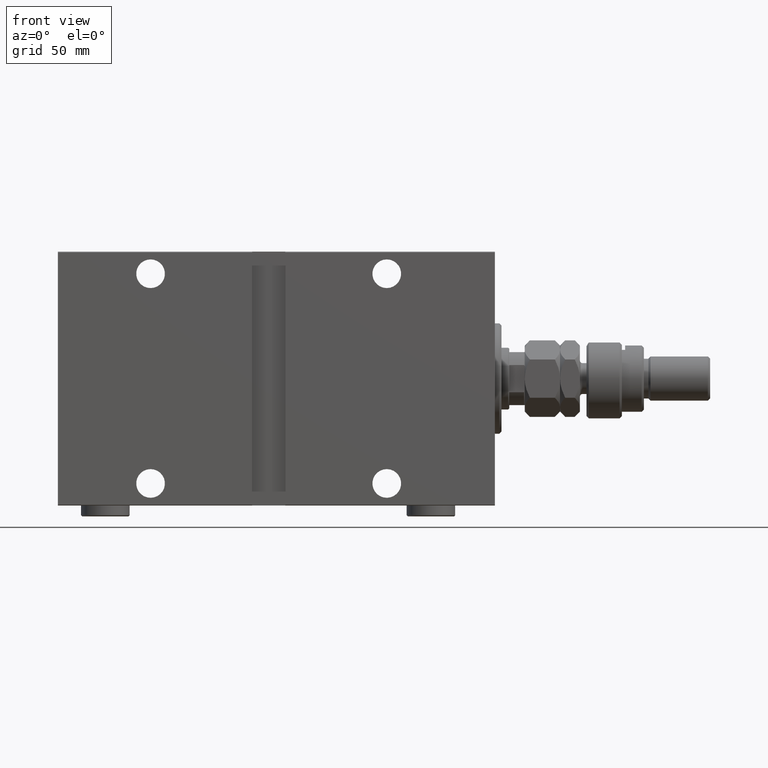
[diagram: clean part render]
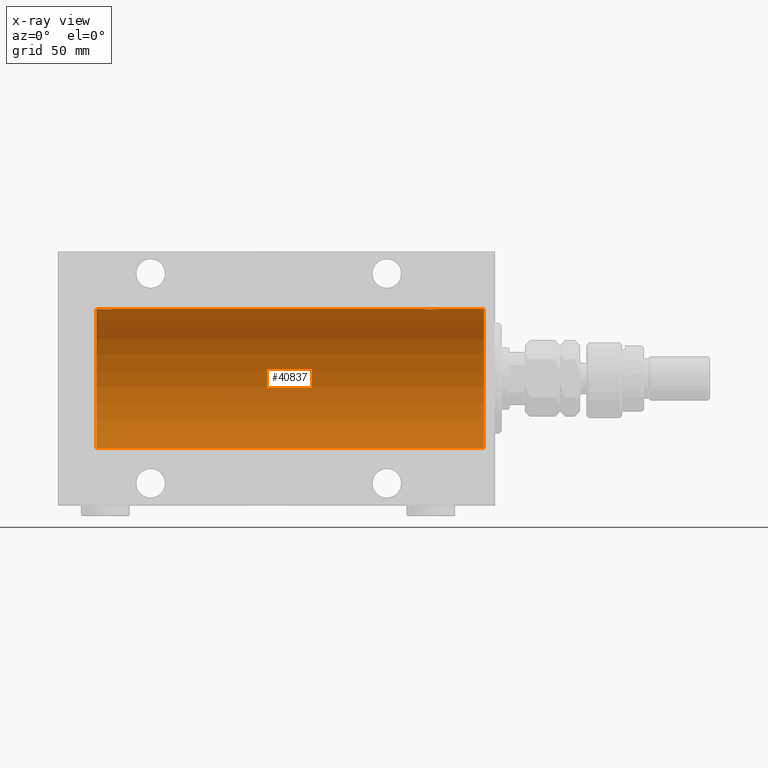
[diagram: x-ray — body ghosted, one internal face saturated and labeled with its STEP entity id]
A machine part, front view, then the same camera in x-ray: the body is ghosted and one INTERNAL B-rep face — a face not visible from any outside direction — is saturated and labeled: STEP entity #40837.
In plain terms, the highlighted cylindrical surface (partial cylindrical patch) has radius 31.5 mm, axis along (1, 0, -0).
Its self-contained STEP definition (entity closure, byte-faithful):
#27 = DIRECTION ( 'NONE',  ( 0.000000000000000000, 0.000000000000000000, 1.000000000000000000 ) ) ;
#210 = CARTESIAN_POINT ( 'NONE',  ( 174.5153964007533318, -2.258226318633794527, 31.41925597582824992 ) ) ;
#393 = CARTESIAN_POINT ( 'NONE',  ( 26.15339536257502218, -0.9669616078782009572, 31.48567319468626735 ) ) ;
#446 = CARTESIAN_POINT ( 'NONE',  ( 173.5000000000000000, -0.1958045626907467252, 31.49999999999999289 ) ) ;
#623 = CARTESIAN_POINT ( 'NONE',  ( 31.38246872266632082, -1.833765390051044220, 31.44700610425690712 ) ) ;
#2165 = VECTOR ( 'NONE', #22106, 1000.000000000000000 ) ;
#3276 = CARTESIAN_POINT ( 'NONE',  ( 26.39582218725271190, -1.502389880413000922, 31.46458023642405166 ) ) ;
#3324 = EDGE_CURVE ( 'NONE', #13335, #43453, #14266, .T. ) ;
#3419 = ORIENTED_EDGE ( 'NONE', *, *, #34948, .T. ) ;
#3558 = CARTESIAN_POINT ( 'NONE',  ( 177.2746909443436891, -2.904836261170105960, 31.36579955910873707 ) ) ;
#3965 = CARTESIAN_POINT ( 'NONE',  ( 30.32865414687508832, -2.696917666262911961, 31.38442820068732075 ) ) ;
#4197 = CARTESIAN_POINT ( 'NONE',  ( 31.69529642359011135, -1.331741824817660236, 31.47235367475394341 ) ) ;
#4499 = CARTESIAN_POINT ( 'NONE',  ( 173.6533953625750257, -0.9669616078782045099, 31.48567319468626735 ) ) ;
#4885 = LINE ( 'NONE', #15626, #14127 ) ;
#5053 = DIRECTION ( 'NONE',  ( -1.000000000000000000, -0.000000000000000000, -0.000000000000000000 ) ) ;
#7128 = CARTESIAN_POINT ( 'NONE',  ( 180.5000000000000000, 3.857637417314162689E-15, -31.50000000000000000 ) ) ;
#7304 = DIRECTION ( 'NONE',  ( -1.000000000000000000, 0.000000000000000000, 0.000000000000000000 ) ) ;
#7374 = CARTESIAN_POINT ( 'NONE',  ( 178.4814346287303692, -2.261012035264783560, 31.41905495618427935 ) ) ;
#7554 = CARTESIAN_POINT ( 'NONE',  ( 32.00000000000000000, -0.3965830985361757932, 31.50000000000000711 ) ) ;
#7612 = CARTESIAN_POINT ( 'NONE',  ( 174.1149855772307262, -1.830470878313874339, 31.44719957596828763 ) ) ;
#7788 = CARTESIAN_POINT ( 'NONE',  ( 26.01898490608483527, -0.3904857149112059278, 31.49817436802766224 ) ) ;
#8115 = EDGE_CURVE ( 'NONE', #20197, #13335, #21104, .T. ) ;
#8207 = VERTEX_POINT ( 'NONE', #18983 ) ;
#9043 = CARTESIAN_POINT ( 'NONE',  ( 179.4202066295003988, -0.7905881588836176643, 31.49214662150070509 ) ) ;
#9475 = VERTEX_POINT ( 'NONE', #25116 ) ;
#10489 = CARTESIAN_POINT ( 'NONE',  ( 180.5000000000000000, 0.000000000000000000, 31.50000000000000000 ) ) ;
#10670 = CARTESIAN_POINT ( 'NONE',  ( 30.98143462873041543, -2.261012035264784004, 31.41905495618427935 ) ) ;
#10749 = ORIENTED_EDGE ( 'NONE', *, *, #45225, .T. ) ;
#10836 = ORIENTED_EDGE ( 'NONE', *, *, #30532, .F. ) ;
#10921 = CARTESIAN_POINT ( 'NONE',  ( 180.5000000000000000, 0.000000000000000000, 31.50000000000000000 ) ) ;
#10955 = CARTESIAN_POINT ( 'NONE',  ( 178.0009815629614707, -2.604888532024795200, 31.39229907792057972 ) ) ;
#11132 = CARTESIAN_POINT ( 'NONE',  ( 29.39114547339941907, -2.980809450819707163, 31.35867074198615967 ) ) ;
#11150 = DIRECTION ( 'NONE',  ( -1.000000000000000000, -0.000000000000000000, -0.000000000000000000 ) ) ;
#11191 = CARTESIAN_POINT ( 'NONE',  ( 176.6958229443944504, -3.000152387858489256, 31.35680286115500337 ) ) ;
#11327 = VERTEX_POINT ( 'NONE', #18474 ) ;
#11375 = CARTESIAN_POINT ( 'NONE',  ( 26.61498557723073333, -1.830470878313879668, 31.44719957596828763 ) ) ;
#11396 = CARTESIAN_POINT ( 'NONE',  ( 179.5000000000000000, -1.371858964305622898E-15, 31.50000000000000000 ) ) ;
#11606 = CARTESIAN_POINT ( 'NONE',  ( 31.92020662950041654, -0.7905881588836122242, 31.49214662150069088 ) ) ;
#11898 = CARTESIAN_POINT ( 'NONE',  ( 176.1046588899989729, -2.980257240990054957, 31.35872356503798031 ) ) ;
#12936 = CARTESIAN_POINT ( 'NONE',  ( 180.5000000000000000, 0.000000000000000000, 0.000000000000000000 ) ) ;
#13335 = VERTEX_POINT ( 'NONE', #10489 ) ;
#13619 = ORIENTED_EDGE ( 'NONE', *, *, #8115, .F. ) ;
#13850 = B_SPLINE_CURVE_WITH_KNOTS ( 'NONE', 3,
 ( #43846, #15185, #7788, #36231, #393, #32854, #3276, #11375, #29736, #25927, #44319, #22336, #18761, #18295, #14249, #29269, #43385, #14480, #11132, #18062, #40273, #3965, #36924, #44087, #10670, #33327, #623, #14946, #4197, #11606, #7554, #29499 ),
 .UNSPECIFIED., .F., .F.,
 ( 4, 2, 2, 2, 2, 2, 2, 2, 2, 2, 2, 2, 2, 2, 2, 4 ),
 ( 0.009384682587134636142, 0.009971088165454035368, 0.01055749374377343633, 0.01114389932209283729, 0.01173030490041223652, 0.01231671047873163748, 0.01290311605705103844, 0.01348952163537044113, 0.01407592721368984209, 0.01466233279200924305, 0.01524873837032864402, 0.01583514394864804498, 0.01642154952696744594, 0.01700795510528684690, 0.01759436068360624786, 0.01876717184024504284 ),
 .UNSPECIFIED. ) ;
#14127 = VECTOR ( 'NONE', #41914, 1000.000000000000000 ) ;
#14249 = CARTESIAN_POINT ( 'NONE',  ( 28.22118087357679528, -2.903733559410688336, 31.36590199989304395 ) ) ;
#14266 = LINE ( 'NONE', #10921, #28596 ) ;
#14480 = CARTESIAN_POINT ( 'NONE',  ( 29.19582294439440062, -3.000152387858491476, 31.35680286115500337 ) ) ;
#14531 = CARTESIAN_POINT ( 'NONE',  ( 177.4651572981064191, -2.847307171789039693, 31.37114183851420179 ) ) ;
#14760 = CARTESIAN_POINT ( 'NONE',  ( 175.7211808735767704, -2.903733559410680343, 31.36590199989304395 ) ) ;
#14946 = CARTESIAN_POINT ( 'NONE',  ( 31.60192140439154684, -1.506272792558327467, 31.46439306106696421 ) ) ;
#15185 = CARTESIAN_POINT ( 'NONE',  ( 26.00000000000000355, -0.1958045626907478631, 31.50000000000000000 ) ) ;
#15474 = CARTESIAN_POINT ( 'NONE',  ( 174.6695630851299654, -2.384935707362438873, 31.40977595730572958 ) ) ;
#15626 = CARTESIAN_POINT ( 'NONE',  ( 180.5000000000000000, 0.000000000000000000, 31.50000000000000000 ) ) ;
#16285 = CARTESIAN_POINT ( 'NONE',  ( 5.000000000000004441, 0.000000000000000000, 31.50000000000000000 ) ) ;
#16422 = CARTESIAN_POINT ( 'NONE',  ( 179.5000000000000284, -0.3965830985361755712, 31.50000000000000000 ) ) ;
#17213 = ORIENTED_EDGE ( 'NONE', *, *, #44056, .T. ) ;
#18062 = CARTESIAN_POINT ( 'NONE',  ( 29.77469094434372465, -2.904836261170110845, 31.36579955910872997 ) ) ;
#18167 = DIRECTION ( 'NONE',  ( -1.000000000000000000, 0.000000000000000000, 0.000000000000000000 ) ) ;
#18295 = CARTESIAN_POINT ( 'NONE',  ( 28.03055544341478367, -2.845838211243338023, 31.37127560316188024 ) ) ;
#18474 = CARTESIAN_POINT ( 'NONE',  ( 26.00000000000000355, -2.117263226567934635E-23, 31.50000000000000000 ) ) ;
#18579 = CARTESIAN_POINT ( 'NONE',  ( 173.8028576116329589, -1.328004386210311027, 31.47251238182141009 ) ) ;
#18761 = CARTESIAN_POINT ( 'NONE',  ( 27.66760041900836242, -2.695056442718537060, 31.38458855656185875 ) ) ;
#18983 = CARTESIAN_POINT ( 'NONE',  ( 173.5000000000000000, -2.118130973563677748E-23, 31.50000000000000000 ) ) ;
#19618 = DIRECTION ( 'NONE',  ( 0.000000000000000000, 0.000000000000000000, 1.000000000000000000 ) ) ;
#20109 = DIRECTION ( 'NONE',  ( -1.000000000000000000, -0.000000000000000000, -0.000000000000000000 ) ) ;
#20197 = VERTEX_POINT ( 'NONE', #7128 ) ;
#21104 = CIRCLE ( 'NONE', #43238, 31.50000000000000000 ) ;
#21267 = ORIENTED_EDGE ( 'NONE', *, *, #29967, .T. ) ;
#21618 = CARTESIAN_POINT ( 'NONE',  ( 32.00000000000000000, -2.212280765433387153E-16, 31.50000000000000000 ) ) ;
#21930 = CARTESIAN_POINT ( 'NONE',  ( 178.7582450190326711, -1.984587626072075617, 31.43772577203671759 ) ) ;
#22106 = DIRECTION ( 'NONE',  ( -1.000000000000000000, -0.000000000000000000, -0.000000000000000000 ) ) ;
#22336 = CARTESIAN_POINT ( 'NONE',  ( 27.49543714993000521, -2.602826974226399859, 31.39247100434484850 ) ) ;
#22628 = CARTESIAN_POINT ( 'NONE',  ( 173.5958054926194336, -0.7775502215293840225, 31.49099686045559565 ) ) ;
#23114 = CARTESIAN_POINT ( 'NONE',  ( 179.5000000000000000, -1.371858964305622898E-15, 31.50000000000000000 ) ) ;
#23146 = ORIENTED_EDGE ( 'NONE', *, *, #41179, .F. ) ;
#23352 = CARTESIAN_POINT ( 'NONE',  ( 179.1952964235900936, -1.331741824817663344, 31.47235367475393630 ) ) ;
#23680 = CYLINDRICAL_SURFACE ( 'NONE', #28902, 31.50000000000000000 ) ;
#25116 = CARTESIAN_POINT ( 'NONE',  ( 5.000000000000004441, 3.857637417314162689E-15, -31.50000000000000000 ) ) ;
#25750 = CARTESIAN_POINT ( 'NONE',  ( 173.5189849060848246, -0.3904857149112032078, 31.49817436802768000 ) ) ;
#25927 = CARTESIAN_POINT ( 'NONE',  ( 27.01539640075336379, -2.258226318633789642, 31.41925597582827123 ) ) ;
#26395 = CARTESIAN_POINT ( 'NONE',  ( 180.5000000000000000, 0.000000000000000000, 31.50000000000000000 ) ) ;
#27251 = FACE_OUTER_BOUND ( 'NONE', #34978, .T. ) ;
#28596 = VECTOR ( 'NONE', #11150, 1000.000000000000000 ) ;
#28902 = AXIS2_PLACEMENT_3D ( 'NONE', #12936, #5053, #19618 ) ;
#28935 = AXIS2_PLACEMENT_3D ( 'NONE', #36331, #18167, #27 ) ;
#29269 = CARTESIAN_POINT ( 'NONE',  ( 28.60465888999905815, -2.980257240990060286, 31.35872356503798031 ) ) ;
#29320 = CARTESIAN_POINT ( 'NONE',  ( 178.8824687226663173, -1.833765390051035116, 31.44700610425690712 ) ) ;
#29485 = DIRECTION ( 'NONE',  ( 0.000000000000000000, 0.000000000000000000, 1.000000000000000000 ) ) ;
#29499 = CARTESIAN_POINT ( 'NONE',  ( 32.00000000000000000, -2.212280765433387153E-16, 31.50000000000000000 ) ) ;
#29733 = LINE ( 'NONE', #26395, #2165 ) ;
#29736 = CARTESIAN_POINT ( 'NONE',  ( 26.73904537543871029, -1.981494824113332998, 31.43792153503156683 ) ) ;
#29967 = EDGE_CURVE ( 'NONE', #11327, #36544, #13850, .T. ) ;
#30029 = CARTESIAN_POINT ( 'NONE',  ( 175.1676004190083233, -2.695056442718528178, 31.38458855656186230 ) ) ;
#30474 = CIRCLE ( 'NONE', #28935, 31.50000000000000000 ) ;
#30532 = EDGE_CURVE ( 'NONE', #11327, #33489, #4885, .T. ) ;
#31704 = B_SPLINE_CURVE_WITH_KNOTS ( 'NONE', 3,
 ( #44378, #446, #25750, #22628, #4499, #18579, #33628, #7612, #32908, #210, #15474, #47243, #30029, #44614, #14760, #11898, #36282, #11191, #40333, #3558, #14531, #43666, #10955, #40089, #7374, #21930, #29320, #41281, #23352, #9043, #16422, #23114 ),
 .UNSPECIFIED., .F., .F.,
 ( 4, 2, 2, 2, 2, 2, 2, 2, 2, 2, 2, 2, 2, 2, 2, 4 ),
 ( 0.009384682587134629203, 0.009971088165454028429, 0.01055749374377342766, 0.01114389932209282688, 0.01173030490041222784, 0.01231671047873162707, 0.01290311605705102629, 0.01348952163537042725, 0.01407592721368982475, 0.01466233279200922571, 0.01524873837032862493, 0.01583514394864802416, 0.01642154952696742165, 0.01700795510528682261, 0.01759436068360622357, 0.01876717184024502202 ),
 .UNSPECIFIED. ) ;
#32648 = ORIENTED_EDGE ( 'NONE', *, *, #3324, .F. ) ;
#32854 = CARTESIAN_POINT ( 'NONE',  ( 26.30285761163299441, -1.328004386210307919, 31.47251238182140298 ) ) ;
#32908 = CARTESIAN_POINT ( 'NONE',  ( 174.2390453754386783, -1.981494824113338549, 31.43792153503156683 ) ) ;
#33075 = CARTESIAN_POINT ( 'NONE',  ( 180.5000000000000000, 0.000000000000000000, 0.000000000000000000 ) ) ;
#33327 = CARTESIAN_POINT ( 'NONE',  ( 31.25824501903267461, -1.984587626072075617, 31.43772577203673180 ) ) ;
#33489 = VERTEX_POINT ( 'NONE', #16285 ) ;
#33628 = CARTESIAN_POINT ( 'NONE',  ( 173.8958221872526906, -1.502389880412996703, 31.46458023642405877 ) ) ;
#34948 = EDGE_CURVE ( 'NONE', #8207, #43453, #31704, .T. ) ;
#34978 = EDGE_LOOP ( 'NONE', ( #13619, #17213, #10749, #10836, #21267, #23146, #3419, #32648 ) ) ;
#36231 = CARTESIAN_POINT ( 'NONE',  ( 26.09580549261944071, -0.7775502215293879082, 31.49099686045559565 ) ) ;
#36282 = CARTESIAN_POINT ( 'NONE',  ( 176.2995354102590113, -2.999845816735298598, 31.35683219171744796 ) ) ;
#36331 = CARTESIAN_POINT ( 'NONE',  ( 5.000000000000004441, 0.000000000000000000, 0.000000000000000000 ) ) ;
#36544 = VERTEX_POINT ( 'NONE', #21618 ) ;
#36924 = CARTESIAN_POINT ( 'NONE',  ( 30.50098156296147422, -2.604888532024794312, 31.39229907792057972 ) ) ;
#37561 = LINE ( 'NONE', #45658, #44935 ) ;
#40089 = CARTESIAN_POINT ( 'NONE',  ( 178.3270422537026718, -2.387531469909777826, 31.40957782495775419 ) ) ;
#40273 = CARTESIAN_POINT ( 'NONE',  ( 29.96515729810639783, -2.847307171789040581, 31.37114183851420890 ) ) ;
#40333 = CARTESIAN_POINT ( 'NONE',  ( 176.8911454733994049, -2.980809450819703166, 31.35867074198615256 ) ) ;
#40837 = ADVANCED_FACE ( 'NONE', ( #27251 ), #23680, .F. ) ;
#41179 = EDGE_CURVE ( 'NONE', #8207, #36544, #29733, .T. ) ;
#41281 = CARTESIAN_POINT ( 'NONE',  ( 179.1019214043915326, -1.506272792558317253, 31.46439306106696421 ) ) ;
#41914 = DIRECTION ( 'NONE',  ( -1.000000000000000000, -0.000000000000000000, -0.000000000000000000 ) ) ;
#43238 = AXIS2_PLACEMENT_3D ( 'NONE', #33075, #7304, #29485 ) ;
#43385 = CARTESIAN_POINT ( 'NONE',  ( 28.79953541025905395, -2.999845816735302151, 31.35683219171744796 ) ) ;
#43453 = VERTEX_POINT ( 'NONE', #11396 ) ;
#43666 = CARTESIAN_POINT ( 'NONE',  ( 177.8286541468750670, -2.696917666262911073, 31.38442820068732075 ) ) ;
#43846 = CARTESIAN_POINT ( 'NONE',  ( 26.00000000000000355, -2.117263226567934635E-23, 31.50000000000000000 ) ) ;
#44056 = EDGE_CURVE ( 'NONE', #20197, #9475, #37561, .T. ) ;
#44087 = CARTESIAN_POINT ( 'NONE',  ( 30.82704225370269668, -2.387531469909775605, 31.40957782495775419 ) ) ;
#44319 = CARTESIAN_POINT ( 'NONE',  ( 27.16956308512997964, -2.384935707362441537, 31.40977595730572958 ) ) ;
#44378 = CARTESIAN_POINT ( 'NONE',  ( 173.5000000000000000, -2.118130973563677748E-23, 31.50000000000000000 ) ) ;
#44614 = CARTESIAN_POINT ( 'NONE',  ( 175.5305554434146984, -2.845838211243331362, 31.37127560316186603 ) ) ;
#44935 = VECTOR ( 'NONE', #20109, 1000.000000000000000 ) ;
#45225 = EDGE_CURVE ( 'NONE', #9475, #33489, #30474, .T. ) ;
#45658 = CARTESIAN_POINT ( 'NONE',  ( 180.5000000000000000, 3.857637417314162689E-15, -31.50000000000000000 ) ) ;
#47243 = CARTESIAN_POINT ( 'NONE',  ( 174.9954371499300407, -2.602826974226398082, 31.39247100434485560 ) ) ;